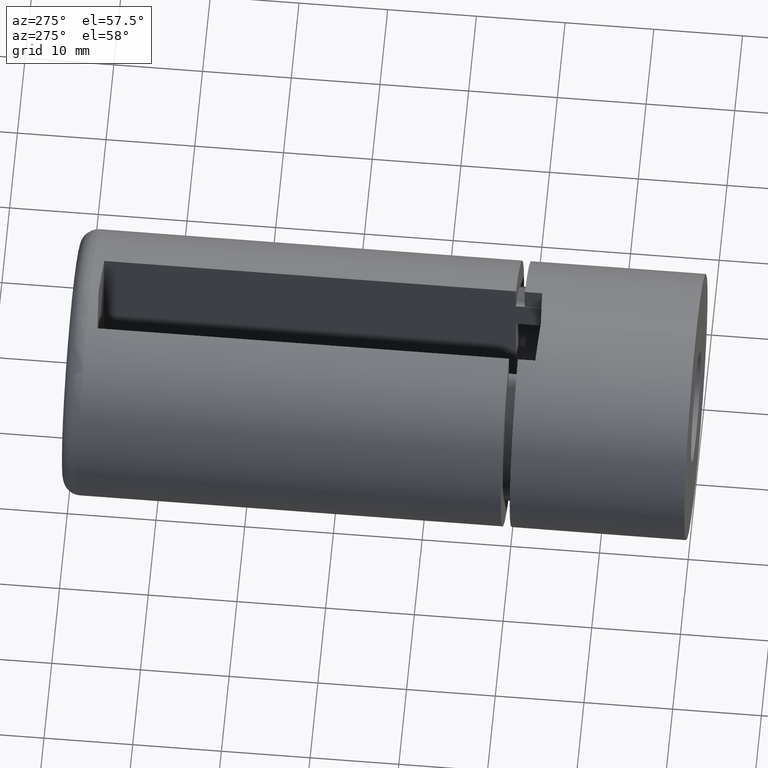
[diagram: clean part render]
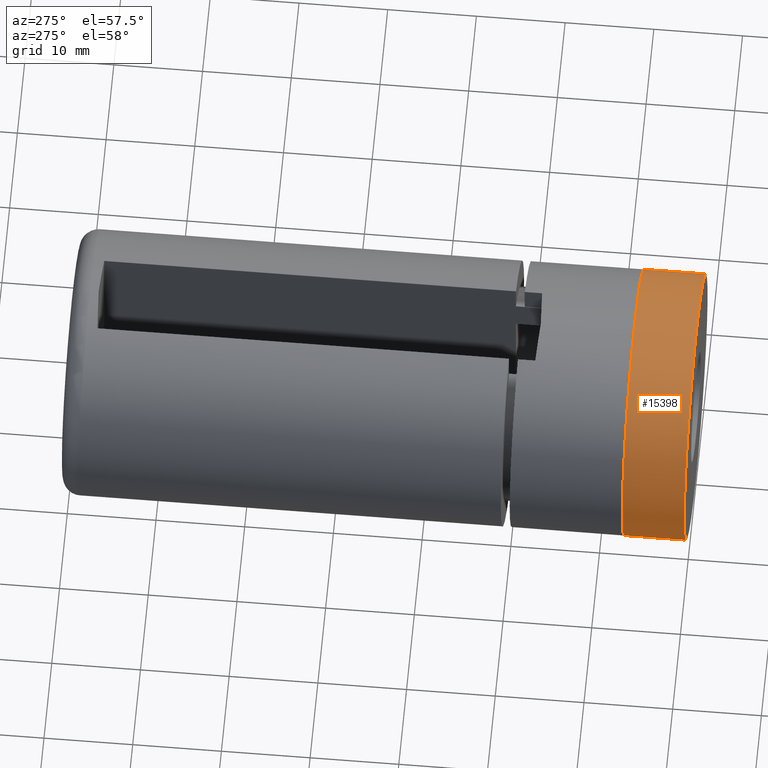
[diagram: same view with one face highlighted and labeled with its STEP entity id]
A machine part, auxiliary view. The second image highlights one B-rep face of the part: STEP entity #15398.
In plain terms, the highlighted cylindrical surface (bore or boss wall) has radius 15 mm, axis along (-0, -1, -0).
Its self-contained STEP definition (entity closure, byte-faithful):
#4 = VERTEX_POINT ( 'NONE', #6579 ) ;
#531 = CARTESIAN_POINT ( 'NONE',  ( 14.91654957582623100, 4.886630708490439000, 1.583032555285201600 ) ) ;
#591 = CARTESIAN_POINT ( 'NONE',  ( 14.99197280321002700, 1.455484101051454100, -0.5520396915552559000 ) ) ;
#649 = CARTESIAN_POINT ( 'NONE',  ( 14.98531365307220800, 1.506924353425382400, 0.6757279831503961700 ) ) ;
#713 = CARTESIAN_POINT ( 'NONE',  ( 14.99807931582386400, 1.413594247296859700, 0.2752854831385432300 ) ) ;
#775 = CARTESIAN_POINT ( 'NONE',  ( 14.99071117512097100, 1.467236527023890300, 0.5447418884881959400 ) ) ;
#830 = CIRCLE ( 'NONE', #15766, 15.00000000000000000 ) ;
#1047 = DIRECTION ( 'NONE',  ( 0.0000000000000000000, 0.0000000000000000000, 1.000000000000000000 ) ) ;
#1258 = CARTESIAN_POINT ( 'NONE',  ( 0.0000000000000000000, 0.0000000000000000000, 15.00000000000000000 ) ) ;
#1573 = CARTESIAN_POINT ( 'NONE',  ( 14.85227255338387300, 3.361081054633816600, -2.100000000000000100 ) ) ;
#1641 = CARTESIAN_POINT ( 'NONE',  ( 14.86162908175470100, 2.955900680671945200, -2.032906503153062000 ) ) ;
#1721 = DIRECTION ( 'NONE',  ( 0.0000000000000000000, 0.0000000000000000000, -1.000000000000000000 ) ) ;
#1790 = CIRCLE ( 'NONE', #8218, 15.00000000000000000 ) ;
#1861 = CARTESIAN_POINT ( 'NONE',  ( 14.96359486387764900, 5.323427643407144100, -1.050689724061230300 ) ) ;
#1917 = CARTESIAN_POINT ( 'NONE',  ( 14.91663226014233100, 2.112412310103575200, 1.582329553470630800 ) ) ;
#1973 = CARTESIAN_POINT ( 'NONE',  ( 14.90719124405484500, 4.792800304203344900, -1.677345147775682000 ) ) ;
#2036 = CARTESIAN_POINT ( 'NONE',  ( 14.85225780194811700, 3.773457249765013200, 2.100104329695589000 ) ) ;
#2108 = CARTESIAN_POINT ( 'NONE',  ( 14.97146737831621100, 5.386155907332919500, 0.9334759379969579400 ) ) ;
#2143 = FACE_BOUND ( 'NONE', #11412, .T. ) ;
#2947 = CARTESIAN_POINT ( 'NONE',  ( 14.94558149708381300, 1.821472091048234500, -1.291278610475290700 ) ) ;
#3154 = EDGE_CURVE ( 'NONE', #9431, #9431, #1790, .T. ) ;
#3186 = CARTESIAN_POINT ( 'NONE',  ( 14.88907228588378300, 2.447666337827163900, -1.822474021161822700 ) ) ;
#3305 = CARTESIAN_POINT ( 'NONE',  ( 14.99803588044667500, 5.586093679874045900, 0.2774070980196613500 ) ) ;
#4246 = CARTESIAN_POINT ( 'NONE',  ( 14.86717778572359600, 2.822441346064820300, -1.992448891922825800 ) ) ;
#4522 = CARTESIAN_POINT ( 'NONE',  ( 14.99810773878437500, 5.586607350888872500, -0.2735515024079612200 ) ) ;
#4642 = CARTESIAN_POINT ( 'NONE',  ( 14.98530654063773500, 5.493020863341648400, -0.6758623706719528700 ) ) ;
#4758 = CARTESIAN_POINT ( 'NONE',  ( 14.85424932411258700, 3.222772719180343200, 2.086148876091535000 ) ) ;
#4846 = EDGE_LOOP ( 'NONE', ( #4878 ) ) ;
#4878 = ORIENTED_EDGE ( 'NONE', *, *, #12482, .F. ) ;
#5603 = DIRECTION ( 'NONE',  ( -0.0000000000000000000, -1.000000000000000000, -0.0000000000000000000 ) ) ;
#5865 = CARTESIAN_POINT ( 'NONE',  ( 14.88783646941993400, 4.558892781389989300, -1.833995870718709800 ) ) ;
#5925 = CARTESIAN_POINT ( 'NONE',  ( 15.00001073210390600, 1.399923342103094300, 0.1359608270577573600 ) ) ;
#5985 = CARTESIAN_POINT ( 'NONE',  ( 14.85227255338387500, 3.777837890732367800, -2.100000000000001400 ) ) ;
#6315 = DIRECTION ( 'NONE',  ( 0.0000000000000000000, 1.000000000000000000, 0.0000000000000000000 ) ) ;
#6337 = EDGE_CURVE ( 'NONE', #14242, #14242, #16271, .T. ) ;
#6579 = CARTESIAN_POINT ( 'NONE',  ( 0.0000000000000000000, 7.000000000000000000, 15.00000000000000000 ) ) ;
#6829 = DIRECTION ( 'NONE',  ( 0.0000000000000000000, 0.0000000000000000000, 1.000000000000000000 ) ) ;
#6922 = CARTESIAN_POINT ( 'NONE',  ( 14.91671182809606200, 2.111636151345841000, -1.581505586933052800 ) ) ;
#7030 = CARTESIAN_POINT ( 'NONE',  ( 14.88093115687803800, 2.568215414941398500, -1.886985904423803500 ) ) ;
#7259 = CARTESIAN_POINT ( 'NONE',  ( 14.90704439421815100, 2.218282147510757300, 1.669098450784618700 ) ) ;
#7386 = CARTESIAN_POINT ( 'NONE',  ( 14.94569797451354600, 1.829797144866673400, 1.280278799442170500 ) ) ;
#7442 = CARTESIAN_POINT ( 'NONE',  ( 14.86031228067962400, 4.050096312032168900, 2.045054317789488000 ) ) ;
#8218 = AXIS2_PLACEMENT_3D ( 'NONE', #14366, #6315, #1047 ) ;
#8553 = CARTESIAN_POINT ( 'NONE',  ( 14.96483194288423100, 1.665063541254759400, -1.057261213926473000 ) ) ;
#8613 = CARTESIAN_POINT ( 'NONE',  ( 14.98515666165309500, 5.491900806030890300, 0.6791852564062772500 ) ) ;
#9431 = VERTEX_POINT ( 'NONE', #1258 ) ;
#9887 = CARTESIAN_POINT ( 'NONE',  ( 15.00001681409874600, 5.600120100750130400, -0.1370021227111402600 ) ) ;
#9938 = CARTESIAN_POINT ( 'NONE',  ( 14.86717688668173100, 2.822469540171070000, 1.992454943137651900 ) ) ;
#9954 = EDGE_LOOP ( 'NONE', ( #12721 ) ) ;
#9997 = CARTESIAN_POINT ( 'NONE',  ( 14.96343420080364000, 1.677898819028561500, 1.052919117453516000 ) ) ;
#10060 = CARTESIAN_POINT ( 'NONE',  ( 14.94557329376355300, 5.169098892562390200, 1.281753681174167200 ) ) ;
#10115 = CARTESIAN_POINT ( 'NONE',  ( 14.93580785602185300, 5.080395452300114000, 1.389635566316079500 ) ) ;
#10748 = AXIS2_PLACEMENT_3D ( 'NONE', #16434, #5603, #1721 ) ;
#10779 = CARTESIAN_POINT ( 'NONE',  ( 14.85227255338387700, 3.500000000000000000, -2.100000000000000100 ) ) ;
#10932 = CARTESIAN_POINT ( 'NONE',  ( 14.85422045007357500, 3.224518085856611800, -2.086351512769399000 ) ) ;
#10981 = ORIENTED_EDGE ( 'NONE', *, *, #6337, .T. ) ;
#11163 = CARTESIAN_POINT ( 'NONE',  ( 14.85227255338387300, 3.500000000000000400, -2.100000000000000500 ) ) ;
#11216 = CARTESIAN_POINT ( 'NONE',  ( 14.93605355099475900, 5.082700583848319000, -1.386998091099954200 ) ) ;
#11280 = CARTESIAN_POINT ( 'NONE',  ( 14.86171875453631600, 2.953359056355873100, 2.032253866321946500 ) ) ;
#11338 = CARTESIAN_POINT ( 'NONE',  ( 14.99079738313514600, 5.533396339824402200, -0.5422729814787496900 ) ) ;
#11412 = EDGE_LOOP ( 'NONE', ( #10981 ) ) ;
#11464 = CARTESIAN_POINT ( 'NONE',  ( 14.97167886894465200, 5.387826316067955400, -0.9300719897764316800 ) ) ;
#12482 = EDGE_CURVE ( 'NONE', #4, #4, #830, .T. ) ;
#12491 = CARTESIAN_POINT ( 'NONE',  ( 14.94580421121919800, 5.171161464542976200, -1.279084292146443600 ) ) ;
#12605 = CARTESIAN_POINT ( 'NONE',  ( 14.96336386670094900, 5.321534584131214300, 1.053942774144048800 ) ) ;
#12720 = CARTESIAN_POINT ( 'NONE',  ( 14.88092410392957800, 2.568334217100956400, 1.887040829819211600 ) ) ;
#12721 = ORIENTED_EDGE ( 'NONE', *, *, #3154, .T. ) ;
#13547 = CARTESIAN_POINT ( 'NONE',  ( 14.90693426483694000, 2.219522831738395500, -1.670088595228581800 ) ) ;
#13839 = CARTESIAN_POINT ( 'NONE',  ( 14.88901739134211300, 4.551621610429326600, 1.822939027015537200 ) ) ;
#13895 = CARTESIAN_POINT ( 'NONE',  ( 14.99997839680747400, 1.400154308541816700, -0.2754584074142260600 ) ) ;
#13964 = CARTESIAN_POINT ( 'NONE',  ( 14.86045667689228900, 4.053851810579541100, -2.044026161332301900 ) ) ;
#14090 = CARTESIAN_POINT ( 'NONE',  ( 14.88078218404790900, 4.429305992327623900, 1.888148206955475400 ) ) ;
#14242 = VERTEX_POINT ( 'NONE', #10779 ) ;
#14285 = FACE_OUTER_BOUND ( 'NONE', #4846, .T. ) ;
#14366 = CARTESIAN_POINT ( 'NONE',  ( 0.0000000000000000000, 0.0000000000000000000, 0.0000000000000000000 ) ) ;
#14711 = DIRECTION ( 'NONE',  ( 0.0000000000000000000, 1.000000000000000000, 0.0000000000000000000 ) ) ;
#14824 = CARTESIAN_POINT ( 'NONE',  ( 0.0000000000000000000, 7.000000000000000000, 0.0000000000000000000 ) ) ;
#15197 = CARTESIAN_POINT ( 'NONE',  ( 14.85227996142196900, 3.362071339320735300, 2.099947606567132300 ) ) ;
#15254 = CARTESIAN_POINT ( 'NONE',  ( 14.93610985704760500, 1.916693562626674600, 1.386472912938023500 ) ) ;
#15318 = CARTESIAN_POINT ( 'NONE',  ( 14.85227255338387300, 3.500000000000000400, -2.100000000000000500 ) ) ;
#15398 = ADVANCED_FACE ( 'NONE', ( #2143, #14285, #16985 ), #16551, .T. ) ;
#15432 = CARTESIAN_POINT ( 'NONE',  ( 14.97167291203837000, 1.612219547436751100, 0.9301848220119645100 ) ) ;
#15766 = AXIS2_PLACEMENT_3D ( 'NONE', #14824, #14711, #6829 ) ;
#16271 = B_SPLINE_CURVE_WITH_KNOTS ( 'NONE', 3,
 ( #11163, #1573, #10932, #1641, #4246, #7030, #3186, #13547, #6922, #2947, #8553, #591, #13895, #5925, #713, #775, #649, #15432, #9997, #7386, #15254, #1917, #7259, #16578, #12720, #9938, #11280, #4758, #15197, #2036, #7442, #14090, #13839, #16767, #531, #10115, #10060, #12605, #2108, #8613, #16694, #3305, #16635, #9887, #4522, #11338, #4642, #11464, #1861, #12491, #11216, #1973, #5865, #13964, #5985, #15318 ),
 .UNSPECIFIED., .T., .F.,
 ( 4, 2, 2, 2, 2, 2, 2, 2, 2, 2, 2, 2, 2, 2, 2, 2, 2, 2, 2, 2, 2, 2, 2, 2, 2, 2, 2, 4 ),
 ( 0.0000000000000000000, 0.0004108016764862697000, 0.0008216033529725393900, 0.001232405029458809300, 0.001643206705945079700, 0.002464810058917619100, 0.003286413411890159300, 0.003697215088376428800, 0.004108016764862699100, 0.004518818441348968600, 0.004929620117835237200, 0.005340421794321506700, 0.005751223470807776200, 0.006162025147294045700, 0.006572826823780315200, 0.007394430176752855000, 0.007805231853239124500, 0.008216033529725394800, 0.008626835206211665200, 0.009037636882697933800, 0.009448438559184204100, 0.009859240235670472700, 0.01027004191215674300, 0.01068084358864301200, 0.01109164526512928200, 0.01150244694161555200, 0.01232405029458809300, 0.01314565364756063400 ),
 .UNSPECIFIED. ) ;
#16434 = CARTESIAN_POINT ( 'NONE',  ( 0.0000000000000000000, 7.000000000000000000, 0.0000000000000000000 ) ) ;
#16551 = CYLINDRICAL_SURFACE ( 'NONE', #10748, 15.00000000000000000 ) ;
#16578 = CARTESIAN_POINT ( 'NONE',  ( 14.88922878942384800, 2.445503899482420500, 1.821188695823271300 ) ) ;
#16635 = CARTESIAN_POINT ( 'NONE',  ( 14.99998296295197200, 5.599878306754706400, 0.1406595749427567200 ) ) ;
#16694 = CARTESIAN_POINT ( 'NONE',  ( 14.99066489657256400, 5.532422350639122600, 0.5458946124158773300 ) ) ;
#16767 = CARTESIAN_POINT ( 'NONE',  ( 14.90697168970222800, 4.780966076606919300, 1.669772624736853800 ) ) ;
#16985 = FACE_OUTER_BOUND ( 'NONE', #9954, .T. ) ;